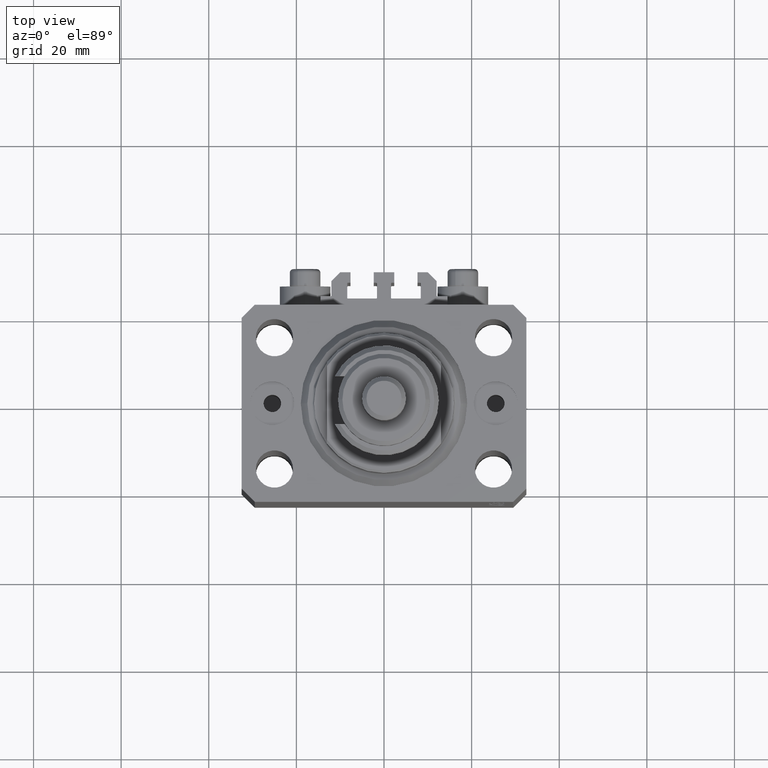
[diagram: clean part render]
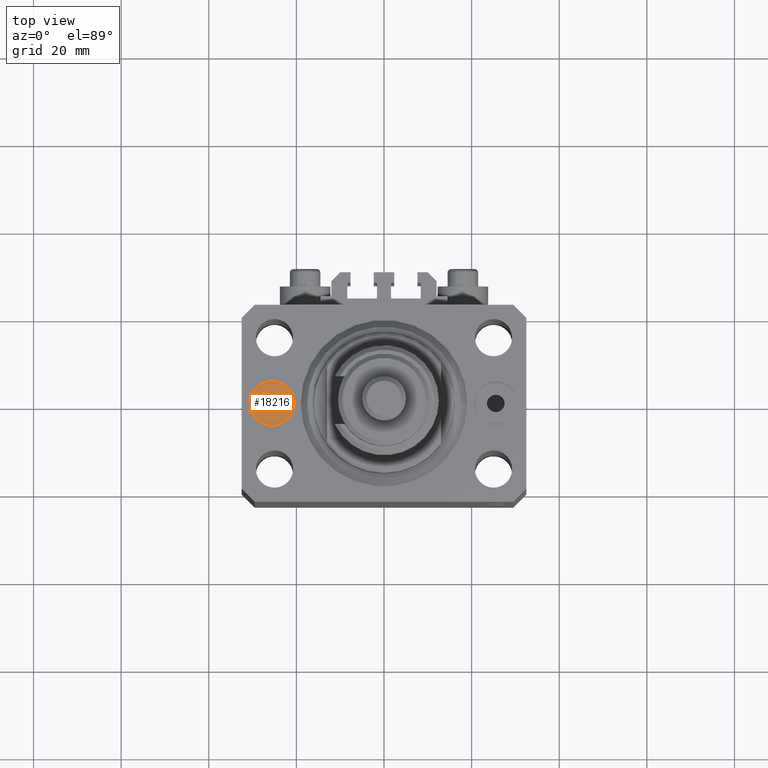
[diagram: same view with one face highlighted and labeled with its STEP entity id]
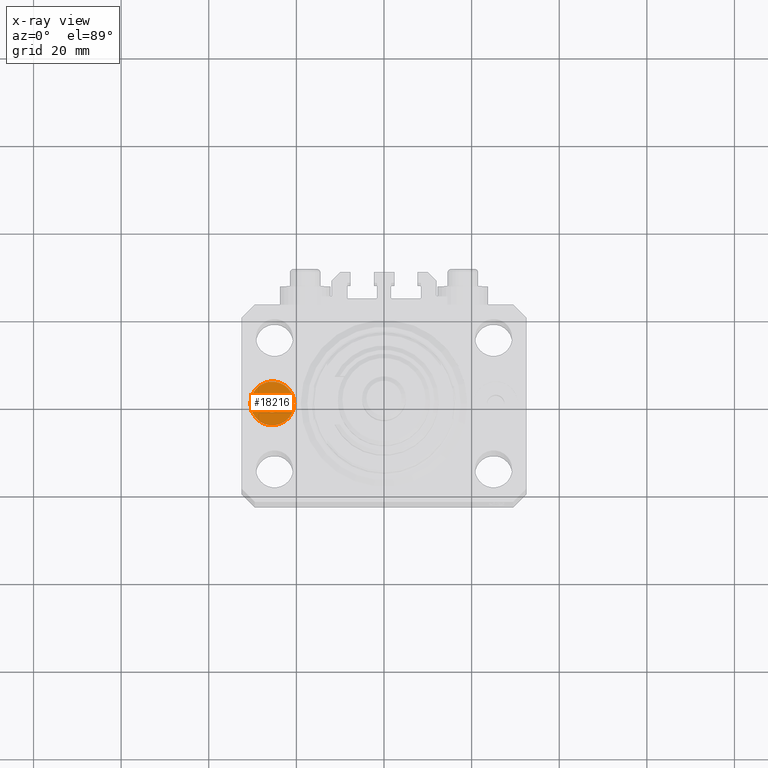
[diagram: x-ray of the same camera — body ghosted, the highlighted face saturated]
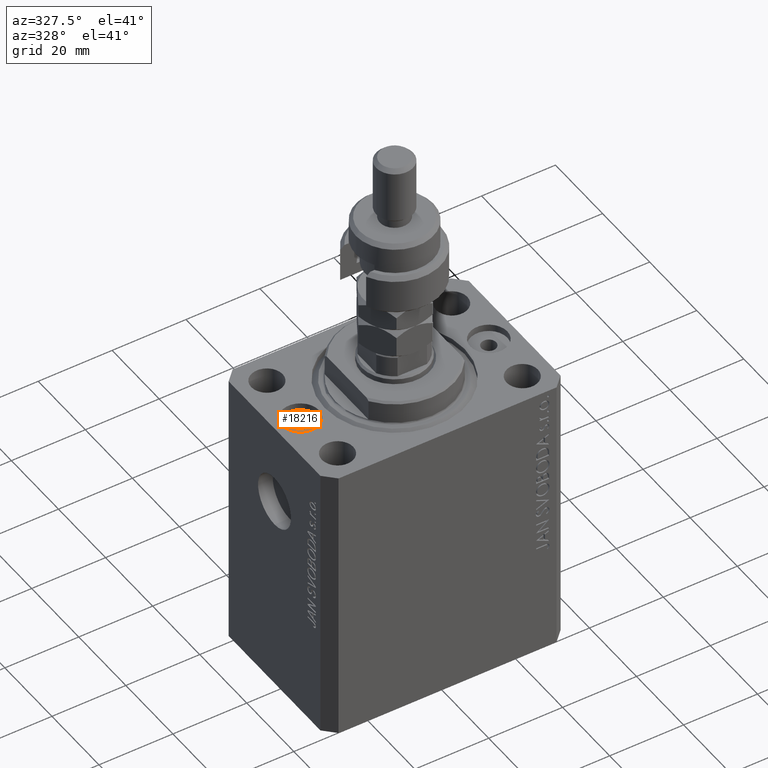
[diagram: same view with one face highlighted and labeled with its STEP entity id]
A machine part, top view. The second image highlights one B-rep face of the part: STEP entity #18216.
The next image is the same camera in x-ray: the body ghosted, the highlighted face saturated — about 0% of this face is hidden behind the body in this view.
A second angle (auxiliary view) of the same face is appended — the face is thin or edge-on in the first view.
In plain terms, the highlighted planar face has unit normal (0, 0, 1).
Its self-contained STEP definition (entity closure, byte-faithful):
#1191 = VERTEX_POINT ( 'NONE', #12259 ) ;
#3307 = CIRCLE ( 'NONE', #9753, 5.000000000003342215 ) ;
#4266 = FACE_OUTER_BOUND ( 'NONE', #32616, .T. ) ;
#5211 = DIRECTION ( 'NONE',  ( 1.000000000000000000, 0.000000000000000000, 0.000000000000000000 ) ) ;
#5520 = CIRCLE ( 'NONE', #7153, 2.000000000003339551 ) ;
#7153 = AXIS2_PLACEMENT_3D ( 'NONE', #38529, #19073, #15270 ) ;
#8070 = AXIS2_PLACEMENT_3D ( 'NONE', #18335, #49437, #38284 ) ;
#9753 = AXIS2_PLACEMENT_3D ( 'NONE', #13617, #13872, #44714 ) ;
#10593 = EDGE_LOOP ( 'NONE', ( #37608, #38360 ) ) ;
#11217 = VERTEX_POINT ( 'NONE', #25719 ) ;
#12072 = ORIENTED_EDGE ( 'NONE', *, *, #36082, .T. ) ;
#12259 = CARTESIAN_POINT ( 'NONE',  ( -23.49999999999666045, 0.000000000000000000, -1.899999999999999911 ) ) ;
#12871 = CIRCLE ( 'NONE', #21745, 5.000000000003342215 ) ;
#13617 = CARTESIAN_POINT ( 'NONE',  ( -25.50000000000000000, 0.000000000000000000, -1.899999999999999911 ) ) ;
#13872 = DIRECTION ( 'NONE',  ( 0.000000000000000000, 0.000000000000000000, 1.000000000000000000 ) ) ;
#15270 = DIRECTION ( 'NONE',  ( 1.000000000000000000, 0.000000000000000000, 0.000000000000000000 ) ) ;
#15363 = CIRCLE ( 'NONE', #8070, 2.000000000003339551 ) ;
#18216 = ADVANCED_FACE ( 'NONE', ( #23213, #4266 ), #23448, .T. ) ;
#18335 = CARTESIAN_POINT ( 'NONE',  ( -25.50000000000000000, 0.000000000000000000, -1.899999999999999911 ) ) ;
#19073 = DIRECTION ( 'NONE',  ( 0.000000000000000000, 0.000000000000000000, 1.000000000000000000 ) ) ;
#20485 = CARTESIAN_POINT ( 'NONE',  ( -30.50000000000333955, 6.123233995740857512E-16, -1.899999999999999911 ) ) ;
#21745 = AXIS2_PLACEMENT_3D ( 'NONE', #35522, #36044, #5211 ) ;
#22011 = EDGE_CURVE ( 'NONE', #11217, #1191, #5520, .T. ) ;
#23213 = FACE_BOUND ( 'NONE', #10593, .T. ) ;
#23448 = PLANE ( 'NONE',  #45767 ) ;
#23562 = VERTEX_POINT ( 'NONE', #20485 ) ;
#25719 = CARTESIAN_POINT ( 'NONE',  ( -27.50000000000333600, 2.449293598298799123E-16, -1.899999999999999911 ) ) ;
#27255 = DIRECTION ( 'NONE',  ( 1.000000000000000000, 0.000000000000000000, -0.000000000000000000 ) ) ;
#30149 = CARTESIAN_POINT ( 'NONE',  ( -20.49999999999665690, 0.000000000000000000, -1.899999999999999911 ) ) ;
#30904 = VERTEX_POINT ( 'NONE', #30149 ) ;
#32616 = EDGE_LOOP ( 'NONE', ( #12072, #34118 ) ) ;
#34118 = ORIENTED_EDGE ( 'NONE', *, *, #38013, .T. ) ;
#34608 = CARTESIAN_POINT ( 'NONE',  ( -25.50000000000000000, 0.000000000000000000, -1.899999999999999911 ) ) ;
#35522 = CARTESIAN_POINT ( 'NONE',  ( -25.50000000000000000, 0.000000000000000000, -1.899999999999999911 ) ) ;
#36044 = DIRECTION ( 'NONE',  ( 0.000000000000000000, 0.000000000000000000, 1.000000000000000000 ) ) ;
#36082 = EDGE_CURVE ( 'NONE', #30904, #23562, #12871, .T. ) ;
#37608 = ORIENTED_EDGE ( 'NONE', *, *, #40225, .F. ) ;
#38013 = EDGE_CURVE ( 'NONE', #23562, #30904, #3307, .T. ) ;
#38284 = DIRECTION ( 'NONE',  ( 1.000000000000000000, 0.000000000000000000, 0.000000000000000000 ) ) ;
#38360 = ORIENTED_EDGE ( 'NONE', *, *, #22011, .F. ) ;
#38529 = CARTESIAN_POINT ( 'NONE',  ( -25.50000000000000000, 0.000000000000000000, -1.899999999999999911 ) ) ;
#38654 = DIRECTION ( 'NONE',  ( 0.000000000000000000, 0.000000000000000000, 1.000000000000000000 ) ) ;
#40225 = EDGE_CURVE ( 'NONE', #1191, #11217, #15363, .T. ) ;
#44714 = DIRECTION ( 'NONE',  ( 1.000000000000000000, 0.000000000000000000, 0.000000000000000000 ) ) ;
#45767 = AXIS2_PLACEMENT_3D ( 'NONE', #34608, #38654, #27255 ) ;
#49437 = DIRECTION ( 'NONE',  ( 0.000000000000000000, 0.000000000000000000, 1.000000000000000000 ) ) ;